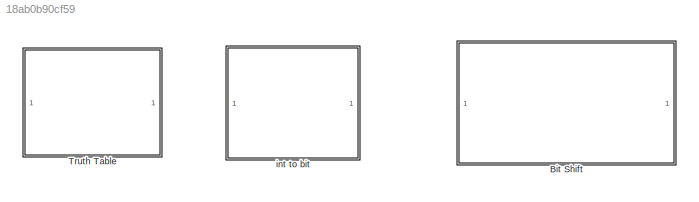
MODEL slx_18ab0b90cf59
KIND model
CONFIG AbsTol = auto
CONFIG EnableMultiTasking = off
CONFIG FixedStep = auto
CONFIG MaxStep = auto
CONFIG MinStep = auto
CONFIG RelTol = 1e-3
CONFIG SampleTimeConstraint = Unconstrained
CONFIG Solver = VariableStepAuto
CONFIG SolverName = VariableStepAuto
CONFIG StartTime = 0.0
CONFIG StopTime = 10.0
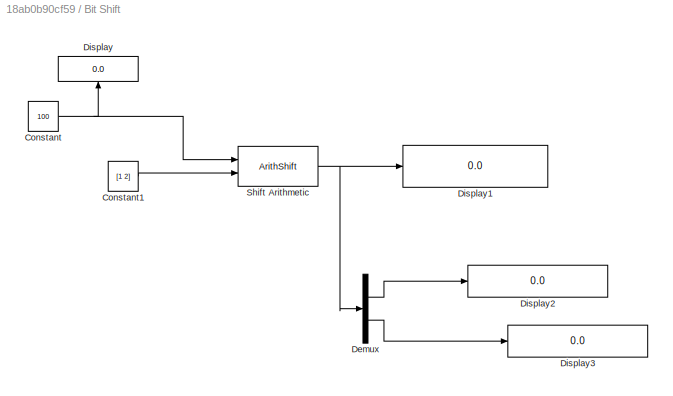
BLOCK [SubSystem] Bit Shift
  Ports = []
BLOCK [Constant] Bit Shift/Constant
  OutDataTypeStr = int8
  Value = 100
BLOCK [Constant] Bit Shift/Constant1
  OutDataTypeStr = int8
  Value = [1 2]
BLOCK [Demux] Bit Shift/Demux
  Outputs = 2
  Ports = [1, 2]
BLOCK [Display] Bit Shift/Display
  Decimation = 1
  Format = binary (Stored Integer)
  Ports = [1]
BLOCK [Display] Bit Shift/Display1
  Decimation = 1
  Format = binary (Stored Integer)
  Ports = [1]
BLOCK [Display] Bit Shift/Display2
  Decimation = 1
  Format = binary (Stored Integer)
  Ports = [1]
BLOCK [Display] Bit Shift/Display3
  Decimation = 1
  Format = binary (Stored Integer)
  Ports = [1]
BLOCK [ArithShift] Bit Shift/Shift Arithmetic
  BinPtShiftNumber = 2
  BitShiftDirection = Left
  BitShiftNumber = 8
  BitShiftNumberSource = Input port
  DiagnosticForOORShift = Warning
  InputPortMap = u0,p1
  Ports = [2, 1]
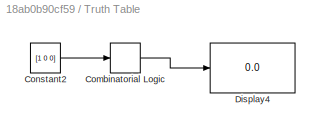
BLOCK [SubSystem] Truth Table
  Ports = []
BLOCK [CombinatorialLogic] Truth Table/Combinatorial Logic
BLOCK [Constant] Truth Table/Constant2
  OutDataTypeStr = boolean
  Value = [1 0 0]
BLOCK [Display] Truth Table/Display4
  Decimation = 1
  Ports = [1]
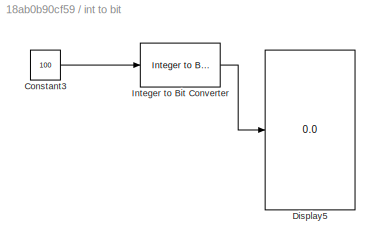
BLOCK [SubSystem] int to bit
  Ports = []
BLOCK [Constant] int to bit/Constant3
  OutDataTypeStr = int8
  Value = 100
BLOCK [Display] int to bit/Display5
  Decimation = 1
  Ports = [1]
BLOCK [Reference] int to bit/Integer to Bit Converter  REF=commutil2/Integer to Bit
Converter
  Ports = [1, 1]
  SourceBlock = commutil2/Integer to Bit\nConverter
  SourceType = Integer to Bit Converter
LINE Bit Shift/Constant1:1 -> Bit Shift/Shift Arithmetic:2
NET Bit Shift/Constant:1 -> Bit Shift/Display:1, Bit Shift/Shift Arithmetic:1
LINE Bit Shift/Demux:1 -> Bit Shift/Display2:1
LINE Bit Shift/Demux:2 -> Bit Shift/Display3:1
NET Bit Shift/Shift Arithmetic:1 -> Bit Shift/Demux:1, Bit Shift/Display1:1
LINE Truth Table/Combinatorial Logic:1 -> Truth Table/Display4:1
LINE Truth Table/Constant2:1 -> Truth Table/Combinatorial Logic:1
LINE int to bit/Constant3:1 -> int to bit/Integer to Bit Converter:1
LINE int to bit/Integer to Bit Converter:1 -> int to bit/Display5:1
note: NET lines group one-source signal fan-out (src -> all destinations, sorted); 1:1 wires keep LINE
